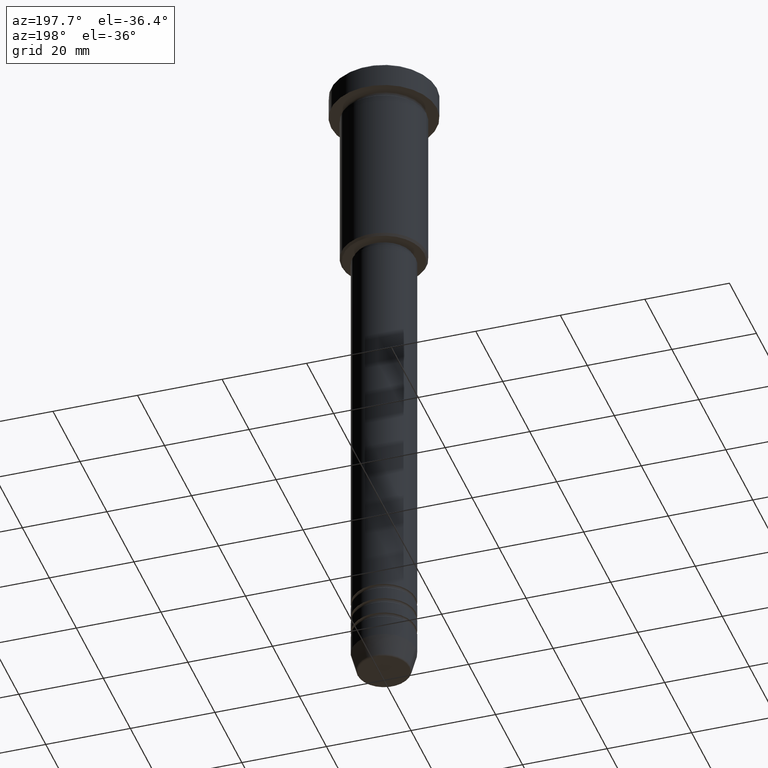
[diagram: clean part render]
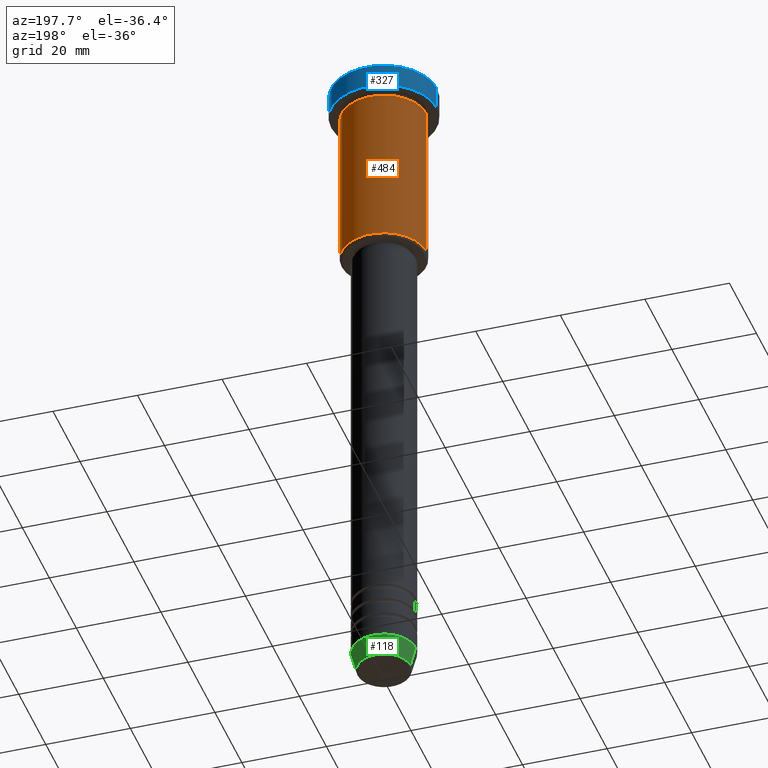
[diagram: same view with three faces highlighted in distinct colors, each labeled with its STEP entity id]
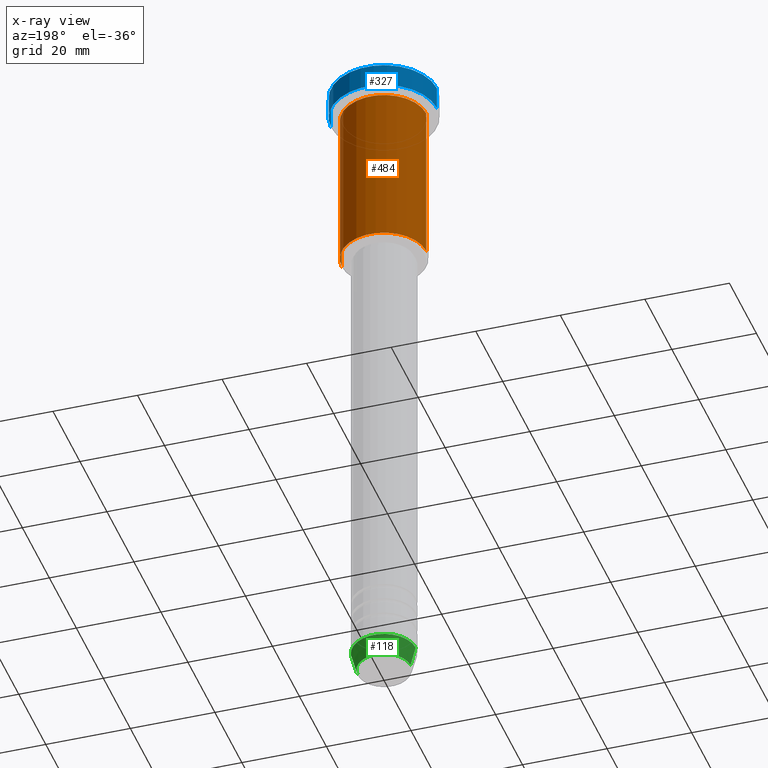
[diagram: x-ray of the same camera — body ghosted, the three highlighted faces saturated]
A machine part, auxiliary view with three faces highlighted in distinct colors.
The next image is the same camera in x-ray (body ghosted, the three faces saturated) — at least one of them is partly hidden behind the body in this view.
Their STEP definitions:

[orange] entity #484 — the highlighted cylindrical surface (partial cylindrical patch) has radius 10 mm, axis along (-0, -0, 1).
#25 = LINE ( 'NONE', #114, #623 ) ;
#27 = FACE_OUTER_BOUND ( 'NONE', #690, .T. ) ;
#29 = CIRCLE ( 'NONE', #511, 10.00000000000000000 ) ;
#43 = ORIENTED_EDGE ( 'NONE', *, *, #593, .F. ) ;
#101 = CYLINDRICAL_SURFACE ( 'NONE', #1111, 10.00000000000000000 ) ;
#104 = ORIENTED_EDGE ( 'NONE', *, *, #867, .F. ) ;
#113 = ORIENTED_EDGE ( 'NONE', *, *, #1097, .T. ) ;
#114 = CARTESIAN_POINT ( 'NONE',  ( -10.00000000000000000, 1.224646799147353256E-15, 0.000000000000000000 ) ) ;
#115 = DIRECTION ( 'NONE',  ( -0.000000000000000000, -0.000000000000000000, 1.000000000000000000 ) ) ;
#195 = DIRECTION ( 'NONE',  ( -0.000000000000000000, -0.000000000000000000, 1.000000000000000000 ) ) ;
#235 = DIRECTION ( 'NONE',  ( 1.000000000000000000, 0.000000000000000000, 0.000000000000000000 ) ) ;
#240 = DIRECTION ( 'NONE',  ( -0.000000000000000000, -0.000000000000000000, 1.000000000000000000 ) ) ;
#296 = CARTESIAN_POINT ( 'NONE',  ( 10.00000000000000000, 0.000000000000000000, -6.999999999999996447 ) ) ;
#402 = CARTESIAN_POINT ( 'NONE',  ( 10.00000000000000000, 0.000000000000000000, 0.000000000000000000 ) ) ;
#415 = CARTESIAN_POINT ( 'NONE',  ( 0.000000000000000000, 0.000000000000000000, -45.49999999999997158 ) ) ;
#424 = CIRCLE ( 'NONE', #1078, 10.00000000000000000 ) ;
#478 = DIRECTION ( 'NONE',  ( 1.000000000000000000, 0.000000000000000000, 0.000000000000000000 ) ) ;
#484 = ADVANCED_FACE ( 'NONE', ( #27 ), #101, .T. ) ;
#511 = AXIS2_PLACEMENT_3D ( 'NONE', #1156, #944, #235 ) ;
#584 = DIRECTION ( 'NONE',  ( -1.000000000000000000, 0.000000000000000000, 0.000000000000000000 ) ) ;
#593 = EDGE_CURVE ( 'NONE', #856, #721, #29, .T. ) ;
#623 = VECTOR ( 'NONE', #1001, 1000.000000000000000 ) ;
#658 = LINE ( 'NONE', #402, #1173 ) ;
#669 = VERTEX_POINT ( 'NONE', #956 ) ;
#690 = EDGE_LOOP ( 'NONE', ( #113, #753, #43, #104 ) ) ;
#721 = VERTEX_POINT ( 'NONE', #1080 ) ;
#734 = CARTESIAN_POINT ( 'NONE',  ( 0.000000000000000000, 0.000000000000000000, 0.000000000000000000 ) ) ;
#753 = ORIENTED_EDGE ( 'NONE', *, *, #841, .T. ) ;
#841 = EDGE_CURVE ( 'NONE', #669, #721, #25, .T. ) ;
#856 = VERTEX_POINT ( 'NONE', #296 ) ;
#867 = EDGE_CURVE ( 'NONE', #1103, #856, #658, .T. ) ;
#937 = CARTESIAN_POINT ( 'NONE',  ( 10.00000000000000000, 0.000000000000000000, -45.49999999999997158 ) ) ;
#944 = DIRECTION ( 'NONE',  ( -0.000000000000000000, -0.000000000000000000, 1.000000000000000000 ) ) ;
#956 = CARTESIAN_POINT ( 'NONE',  ( -10.00000000000000000, 1.224646799147353256E-15, -45.49999999999997158 ) ) ;
#1001 = DIRECTION ( 'NONE',  ( -0.000000000000000000, -0.000000000000000000, 1.000000000000000000 ) ) ;
#1078 = AXIS2_PLACEMENT_3D ( 'NONE', #415, #240, #584 ) ;
#1080 = CARTESIAN_POINT ( 'NONE',  ( -10.00000000000000000, 1.224646799147353256E-15, -6.999999999999996447 ) ) ;
#1097 = EDGE_CURVE ( 'NONE', #1103, #669, #424, .T. ) ;
#1103 = VERTEX_POINT ( 'NONE', #937 ) ;
#1111 = AXIS2_PLACEMENT_3D ( 'NONE', #734, #115, #478 ) ;
#1156 = CARTESIAN_POINT ( 'NONE',  ( 0.000000000000000000, 0.000000000000000000, -6.999999999999996447 ) ) ;
#1173 = VECTOR ( 'NONE', #195, 1000.000000000000000 ) ;

[blue] entity #327 — the highlighted cylindrical surface (partial cylindrical patch) has radius 12.5 mm, axis along (-0, -0, 1).
#22 = LINE ( 'NONE', #398, #975 ) ;
#39 = DIRECTION ( 'NONE',  ( 0.000000000000000000, 0.000000000000000000, -1.000000000000000000 ) ) ;
#83 = CARTESIAN_POINT ( 'NONE',  ( 12.50000000000000000, 0.000000000000000000, -0.5000000000000056621 ) ) ;
#120 = DIRECTION ( 'NONE',  ( -0.000000000000000000, -0.000000000000000000, 1.000000000000000000 ) ) ;
#140 = DIRECTION ( 'NONE',  ( -0.000000000000000000, -0.000000000000000000, 1.000000000000000000 ) ) ;
#168 = VECTOR ( 'NONE', #140, 1000.000000000000000 ) ;
#200 = EDGE_CURVE ( 'NONE', #533, #784, #309, .T. ) ;
#219 = CARTESIAN_POINT ( 'NONE',  ( 12.50000000000000000, 0.000000000000000000, -5.999999999999996447 ) ) ;
#267 = CIRCLE ( 'NONE', #325, 12.50000000000000000 ) ;
#284 = CARTESIAN_POINT ( 'NONE',  ( -12.50000000000000000, 1.530808498934191521E-15, -0.5000000000000056621 ) ) ;
#309 = CIRCLE ( 'NONE', #960, 12.50000000000000000 ) ;
#325 = AXIS2_PLACEMENT_3D ( 'NONE', #686, #39, #432 ) ;
#327 = ADVANCED_FACE ( 'NONE', ( #370 ), #905, .T. ) ;
#370 = FACE_OUTER_BOUND ( 'NONE', #1000, .T. ) ;
#371 = VERTEX_POINT ( 'NONE', #83 ) ;
#389 = DIRECTION ( 'NONE',  ( 1.000000000000000000, 0.000000000000000000, 0.000000000000000000 ) ) ;
#398 = CARTESIAN_POINT ( 'NONE',  ( 12.50000000000000000, 0.000000000000000000, 0.000000000000000000 ) ) ;
#432 = DIRECTION ( 'NONE',  ( 1.000000000000000000, 0.000000000000000000, 0.000000000000000000 ) ) ;
#440 = CARTESIAN_POINT ( 'NONE',  ( 0.000000000000000000, 0.000000000000000000, -5.999999999999996447 ) ) ;
#499 = CARTESIAN_POINT ( 'NONE',  ( -12.50000000000000000, 1.530808498934191521E-15, 0.000000000000000000 ) ) ;
#507 = EDGE_CURVE ( 'NONE', #533, #371, #22, .T. ) ;
#533 = VERTEX_POINT ( 'NONE', #219 ) ;
#636 = DIRECTION ( 'NONE',  ( -0.000000000000000000, -0.000000000000000000, 1.000000000000000000 ) ) ;
#686 = CARTESIAN_POINT ( 'NONE',  ( 0.000000000000000000, 0.000000000000000000, -0.5000000000000056621 ) ) ;
#695 = DIRECTION ( 'NONE',  ( 1.000000000000000000, 0.000000000000000000, 0.000000000000000000 ) ) ;
#720 = CARTESIAN_POINT ( 'NONE',  ( 0.000000000000000000, 0.000000000000000000, 0.000000000000000000 ) ) ;
#762 = LINE ( 'NONE', #499, #168 ) ;
#784 = VERTEX_POINT ( 'NONE', #892 ) ;
#892 = CARTESIAN_POINT ( 'NONE',  ( -12.50000000000000000, 1.530808498934191521E-15, -5.999999999999996447 ) ) ;
#905 = CYLINDRICAL_SURFACE ( 'NONE', #929, 12.50000000000000000 ) ;
#920 = VERTEX_POINT ( 'NONE', #284 ) ;
#929 = AXIS2_PLACEMENT_3D ( 'NONE', #720, #636, #389 ) ;
#942 = ORIENTED_EDGE ( 'NONE', *, *, #1117, .T. ) ;
#960 = AXIS2_PLACEMENT_3D ( 'NONE', #440, #1151, #695 ) ;
#975 = VECTOR ( 'NONE', #120, 1000.000000000000000 ) ;
#1000 = EDGE_LOOP ( 'NONE', ( #1004, #942, #1119, #1032 ) ) ;
#1004 = ORIENTED_EDGE ( 'NONE', *, *, #200, .T. ) ;
#1032 = ORIENTED_EDGE ( 'NONE', *, *, #507, .F. ) ;
#1088 = EDGE_CURVE ( 'NONE', #920, #371, #267, .T. ) ;
#1117 = EDGE_CURVE ( 'NONE', #784, #920, #762, .T. ) ;
#1119 = ORIENTED_EDGE ( 'NONE', *, *, #1088, .T. ) ;
#1151 = DIRECTION ( 'NONE',  ( -0.000000000000000000, -0.000000000000000000, 1.000000000000000000 ) ) ;

[green] entity #118 — the highlighted conical surface has half-angle 15 deg.
#32 = AXIS2_PLACEMENT_3D ( 'NONE', #1140, #526, #355 ) ;
#118 = ADVANCED_FACE ( 'NONE', ( #496 ), #939, .T. ) ;
#122 = VERTEX_POINT ( 'NONE', #251 ) ;
#161 = DIRECTION ( 'NONE',  ( 0.2588190451025213501, 0.000000000000000000, 0.9659258262890680902 ) ) ;
#187 = AXIS2_PLACEMENT_3D ( 'NONE', #825, #1029, #303 ) ;
#251 = CARTESIAN_POINT ( 'NONE',  ( -6.259553456999438659, 8.425296549405629486E-16, -160.6294095225512706 ) ) ;
#260 = EDGE_CURVE ( 'NONE', #122, #288, #1100, .T. ) ;
#279 = CARTESIAN_POINT ( 'NONE',  ( 0.000000000000000000, 0.000000000000000000, -156.0000000000000284 ) ) ;
#287 = CARTESIAN_POINT ( 'NONE',  ( -7.500000000000000000, 9.184850993605147944E-16, -156.0000000000000284 ) ) ;
#288 = VERTEX_POINT ( 'NONE', #287 ) ;
#293 = DIRECTION ( 'NONE',  ( -0.000000000000000000, -0.000000000000000000, 1.000000000000000000 ) ) ;
#303 = DIRECTION ( 'NONE',  ( 1.000000000000000000, 0.000000000000000000, 0.000000000000000000 ) ) ;
#317 = VECTOR ( 'NONE', #472, 1000.000000000000000 ) ;
#354 = CARTESIAN_POINT ( 'NONE',  ( 7.500000000000000000, 0.000000000000000000, -156.0000000000000284 ) ) ;
#355 = DIRECTION ( 'NONE',  ( 1.000000000000000000, 0.000000000000000000, 0.000000000000000000 ) ) ;
#364 = EDGE_CURVE ( 'NONE', #1160, #288, #782, .T. ) ;
#447 = CARTESIAN_POINT ( 'NONE',  ( 6.259553456999438659, 0.000000000000000000, -160.6294095225512706 ) ) ;
#454 = ORIENTED_EDGE ( 'NONE', *, *, #260, .T. ) ;
#458 = CARTESIAN_POINT ( 'NONE',  ( -7.500000000000000000, 9.184850993605147944E-16, -156.0000000000000284 ) ) ;
#461 = EDGE_CURVE ( 'NONE', #739, #122, #799, .T. ) ;
#469 = ORIENTED_EDGE ( 'NONE', *, *, #364, .F. ) ;
#472 = DIRECTION ( 'NONE',  ( -0.2588190451025213501, 3.169619151431772337E-17, 0.9659258262890680902 ) ) ;
#496 = FACE_OUTER_BOUND ( 'NONE', #726, .T. ) ;
#526 = DIRECTION ( 'NONE',  ( -0.000000000000000000, -0.000000000000000000, 1.000000000000000000 ) ) ;
#626 = LINE ( 'NONE', #354, #715 ) ;
#677 = AXIS2_PLACEMENT_3D ( 'NONE', #279, #293, #1002 ) ;
#696 = ORIENTED_EDGE ( 'NONE', *, *, #461, .T. ) ;
#711 = EDGE_CURVE ( 'NONE', #739, #1160, #626, .T. ) ;
#715 = VECTOR ( 'NONE', #161, 1000.000000000000000 ) ;
#726 = EDGE_LOOP ( 'NONE', ( #696, #454, #469, #1008 ) ) ;
#739 = VERTEX_POINT ( 'NONE', #447 ) ;
#782 = CIRCLE ( 'NONE', #677, 7.500000000000000000 ) ;
#799 = CIRCLE ( 'NONE', #187, 6.259553456999438659 ) ;
#825 = CARTESIAN_POINT ( 'NONE',  ( 0.000000000000000000, 0.000000000000000000, -160.6294095225512706 ) ) ;
#939 = CONICAL_SURFACE ( 'NONE', #32, 7.500000000000000000, 0.2617993877991500740 ) ;
#1002 = DIRECTION ( 'NONE',  ( 1.000000000000000000, 0.000000000000000000, 0.000000000000000000 ) ) ;
#1008 = ORIENTED_EDGE ( 'NONE', *, *, #711, .F. ) ;
#1029 = DIRECTION ( 'NONE',  ( -0.000000000000000000, -0.000000000000000000, 1.000000000000000000 ) ) ;
#1067 = CARTESIAN_POINT ( 'NONE',  ( 7.500000000000000000, 0.000000000000000000, -156.0000000000000284 ) ) ;
#1100 = LINE ( 'NONE', #458, #317 ) ;
#1140 = CARTESIAN_POINT ( 'NONE',  ( 0.000000000000000000, 0.000000000000000000, -156.0000000000000284 ) ) ;
#1160 = VERTEX_POINT ( 'NONE', #1067 ) ;